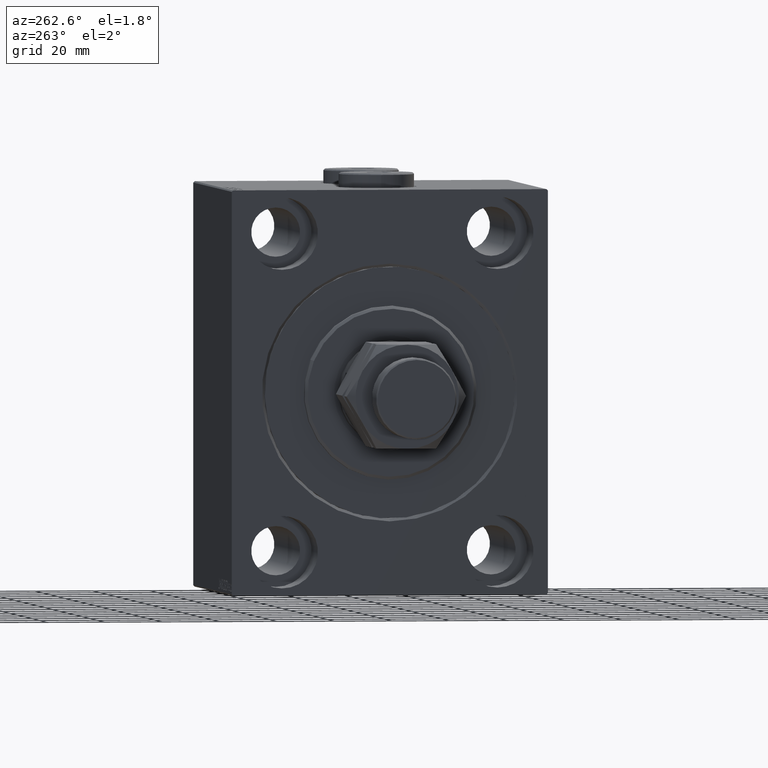
[diagram: clean part render]
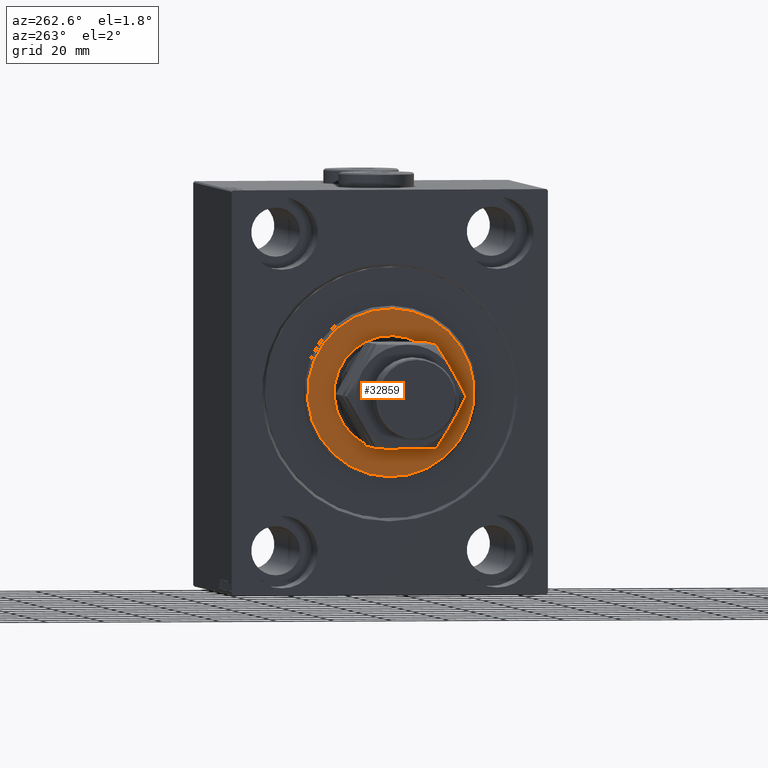
[diagram: same view with one face highlighted and labeled with its STEP entity id]
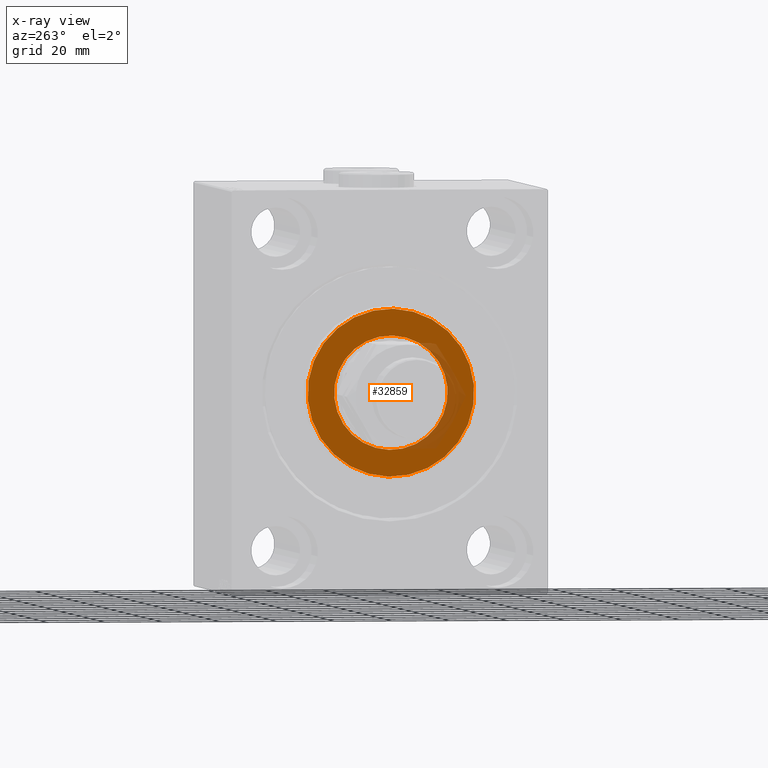
[diagram: x-ray of the same camera — body ghosted, the highlighted face saturated]
A machine part, auxiliary view. The second image highlights one B-rep face of the part: STEP entity #32859.
The next image is the same camera in x-ray: the body ghosted, the highlighted face saturated — about 13% of this face is hidden behind the body in this view.
In plain terms, the highlighted planar face has unit normal (-1, 0, 0).
Its self-contained STEP definition (entity closure, byte-faithful):
#555 = DIRECTION ( 'NONE',  ( 1.000000000000000000, -0.000000000000000000, 0.000000000000000000 ) ) ;
#975 = DIRECTION ( 'NONE',  ( -1.000000000000000000, 0.000000000000000000, -0.000000000000000000 ) ) ;
#3594 = ORIENTED_EDGE ( 'NONE', *, *, #41113, .T. ) ;
#3834 = CARTESIAN_POINT ( 'NONE',  ( 3.000000000000000000, 0.000000000000000000, 0.000000000000000000 ) ) ;
#4489 = DIRECTION ( 'NONE',  ( -1.000000000000000000, 0.000000000000000000, -0.000000000000000000 ) ) ;
#4538 = AXIS2_PLACEMENT_3D ( 'NONE', #3834, #17356, #28949 ) ;
#5000 = CARTESIAN_POINT ( 'NONE',  ( 3.000000000000000000, 0.000000000000000000, 0.000000000000000000 ) ) ;
#5985 = ORIENTED_EDGE ( 'NONE', *, *, #45019, .T. ) ;
#6600 = ORIENTED_EDGE ( 'NONE', *, *, #18042, .T. ) ;
#7327 = DIRECTION ( 'NONE',  ( 1.000000000000000000, -0.000000000000000000, 0.000000000000000000 ) ) ;
#8891 = CARTESIAN_POINT ( 'NONE',  ( 3.000000000000000000, 3.612708057484693181E-15, -29.00000000000002132 ) ) ;
#9053 = ORIENTED_EDGE ( 'NONE', *, *, #18102, .T. ) ;
#10980 = PLANE ( 'NONE',  #45733 ) ;
#11207 = DIRECTION ( 'NONE',  ( 0.000000000000000000, 0.000000000000000000, -1.000000000000000000 ) ) ;
#16084 = EDGE_LOOP ( 'NONE', ( #5985, #6600 ) ) ;
#17356 = DIRECTION ( 'NONE',  ( 1.000000000000000000, -0.000000000000000000, 0.000000000000000000 ) ) ;
#18042 = EDGE_CURVE ( 'NONE', #20906, #31462, #34828, .T. ) ;
#18102 = EDGE_CURVE ( 'NONE', #33570, #44147, #46145, .T. ) ;
#18314 = FACE_BOUND ( 'NONE', #39328, .T. ) ;
#18929 = DIRECTION ( 'NONE',  ( 0.000000000000000000, 0.000000000000000000, -1.000000000000000000 ) ) ;
#19516 = CARTESIAN_POINT ( 'NONE',  ( 3.000000000000000000, 2.418677428316022331E-15, -19.75000000000000000 ) ) ;
#20604 = CARTESIAN_POINT ( 'NONE',  ( 3.000000000000000000, 0.000000000000000000, 19.75000000000000000 ) ) ;
#20906 = VERTEX_POINT ( 'NONE', #8891 ) ;
#21180 = AXIS2_PLACEMENT_3D ( 'NONE', #5000, #975, #29875 ) ;
#22972 = CIRCLE ( 'NONE', #37371, 29.00000000000002132 ) ;
#26469 = CARTESIAN_POINT ( 'NONE',  ( 3.000000000000000000, 0.000000000000000000, 29.00000000000002132 ) ) ;
#27588 = AXIS2_PLACEMENT_3D ( 'NONE', #33384, #4489, #18929 ) ;
#28949 = DIRECTION ( 'NONE',  ( 0.000000000000000000, 0.000000000000000000, -1.000000000000000000 ) ) ;
#29875 = DIRECTION ( 'NONE',  ( 0.000000000000000000, 0.000000000000000000, -1.000000000000000000 ) ) ;
#31462 = VERTEX_POINT ( 'NONE', #26469 ) ;
#32768 = CARTESIAN_POINT ( 'NONE',  ( 3.000000000000000000, 0.000000000000000000, 0.000000000000000000 ) ) ;
#32859 = ADVANCED_FACE ( 'NONE', ( #43439, #18314 ), #10980, .T. ) ;
#33384 = CARTESIAN_POINT ( 'NONE',  ( 3.000000000000000000, 0.000000000000000000, 0.000000000000000000 ) ) ;
#33570 = VERTEX_POINT ( 'NONE', #19516 ) ;
#34828 = CIRCLE ( 'NONE', #4538, 29.00000000000002132 ) ;
#37371 = AXIS2_PLACEMENT_3D ( 'NONE', #40251, #7327, #40022 ) ;
#39328 = EDGE_LOOP ( 'NONE', ( #3594, #9053 ) ) ;
#40022 = DIRECTION ( 'NONE',  ( 0.000000000000000000, 0.000000000000000000, -1.000000000000000000 ) ) ;
#40251 = CARTESIAN_POINT ( 'NONE',  ( 3.000000000000000000, 0.000000000000000000, 0.000000000000000000 ) ) ;
#41113 = EDGE_CURVE ( 'NONE', #44147, #33570, #44202, .T. ) ;
#43439 = FACE_OUTER_BOUND ( 'NONE', #16084, .T. ) ;
#44147 = VERTEX_POINT ( 'NONE', #20604 ) ;
#44202 = CIRCLE ( 'NONE', #27588, 19.75000000000000000 ) ;
#45019 = EDGE_CURVE ( 'NONE', #31462, #20906, #22972, .T. ) ;
#45733 = AXIS2_PLACEMENT_3D ( 'NONE', #32768, #555, #11207 ) ;
#46145 = CIRCLE ( 'NONE', #21180, 19.75000000000000000 ) ;